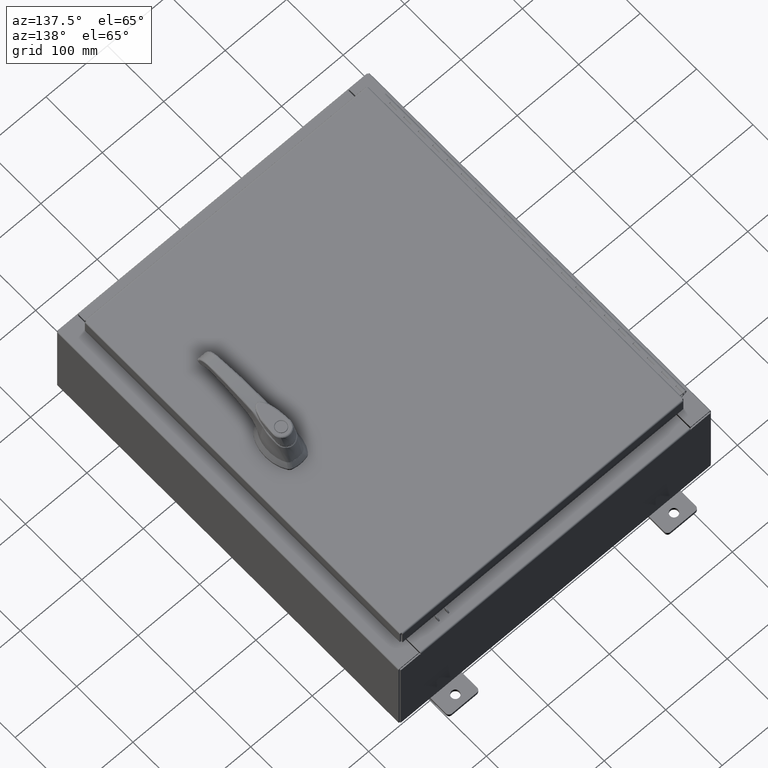
[diagram: clean part render]
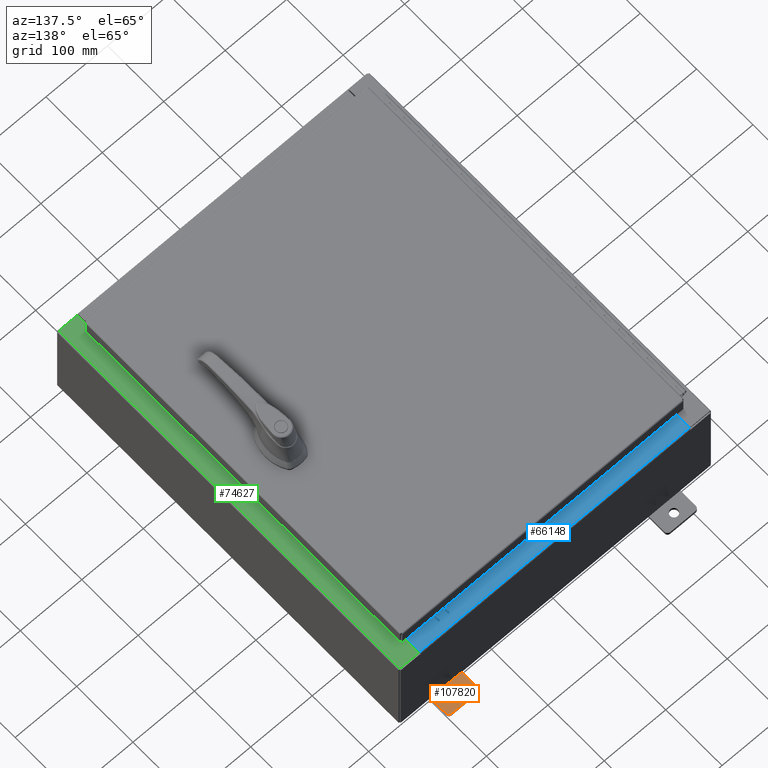
[diagram: same view with three faces highlighted in distinct colors, each labeled with its STEP entity id]
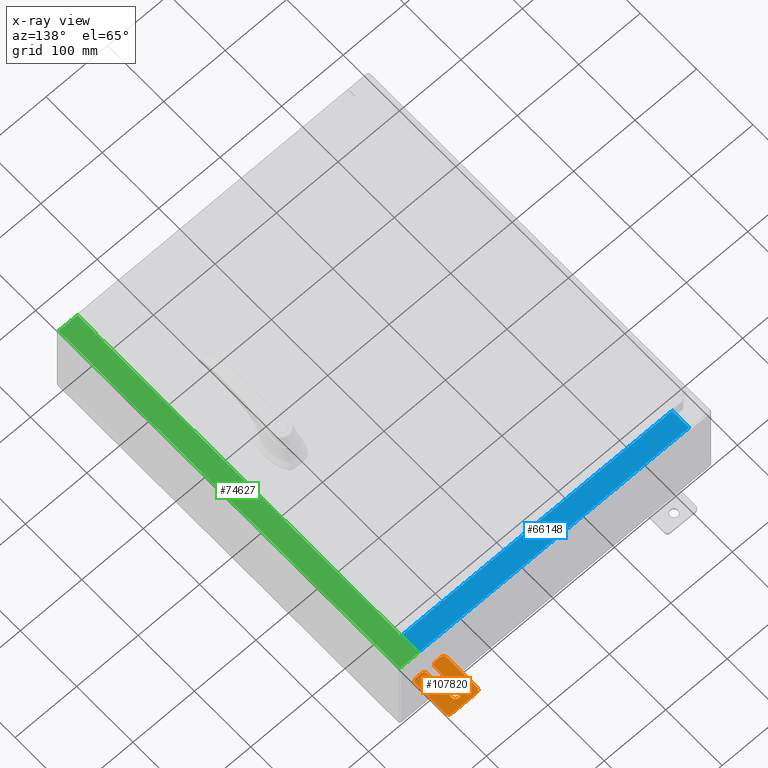
[diagram: x-ray of the same camera — body ghosted, the three highlighted faces saturated]
A machine part, auxiliary view with three faces highlighted in distinct colors.
The next image is the same camera in x-ray (body ghosted, the three faces saturated) — at least one of them is partly hidden behind the body in this view.
Their STEP definitions:

[orange] entity #107820 — the highlighted planar face has unit normal (0, 0, 1).
#383 = AXIS2_PLACEMENT_3D ( 'NONE', #83677, #31133, #92495 ) ;
#1089 = DIRECTION ( 'NONE',  ( 0.0000000000000000000, -1.639108796198553600E-015, -1.000000000000000000 ) ) ;
#3172 = ORIENTED_EDGE ( 'NONE', *, *, #18090, .T. ) ;
#5237 = EDGE_LOOP ( 'NONE', ( #54647, #91751 ) ) ;
#6059 = ORIENTED_EDGE ( 'NONE', *, *, #61087, .T. ) ;
#6910 = VECTOR ( 'NONE', #79364, 39.37007874015748100 ) ;
#7860 = EDGE_CURVE ( 'NONE', #93725, #83762, #107608, .T. ) ;
#9189 = VERTEX_POINT ( 'NONE', #81937 ) ;
#11340 = EDGE_CURVE ( 'NONE', #60793, #107185, #50940, .T. ) ;
#12171 = VECTOR ( 'NONE', #1089, 39.37007874015748100 ) ;
#14058 = DIRECTION ( 'NONE',  ( 1.000000000000000000, 0.0000000000000000000, -0.0000000000000000000 ) ) ;
#14570 = CARTESIAN_POINT ( 'NONE',  ( 0.0000000000000000000, -1.250000000000002400, 0.8099999999999980500 ) ) ;
#15679 = CARTESIAN_POINT ( 'NONE',  ( 0.0000000000000000000, 1.059999999999996500, 0.9999999999999953400 ) ) ;
#17551 = VERTEX_POINT ( 'NONE', #30826 ) ;
#18003 = CARTESIAN_POINT ( 'NONE',  ( 0.0000000000000000000, -1.250000000000005600, -1.000000000000006200 ) ) ;
#18090 = EDGE_CURVE ( 'NONE', #17551, #9189, #48164, .T. ) ;
#19557 = EDGE_CURVE ( 'NONE', #51371, #92406, #23348, .T. ) ;
#22724 = CARTESIAN_POINT ( 'NONE',  ( 0.0000000000000000000, -1.060000000000004100, -0.8100000000000050500 ) ) ;
#23044 = CARTESIAN_POINT ( 'NONE',  ( 0.0000000000000000000, -1.060000000000001200, 0.9999999999999988900 ) ) ;
#23348 = CIRCLE ( 'NONE', #383, 0.2499999999999999200 ) ;
#24447 = CARTESIAN_POINT ( 'NONE',  ( 6.829619984160658000E-017, -1.250000000000003800, 0.2500000000000005000 ) ) ;
#24894 = VECTOR ( 'NONE', #27491, 39.37007874015748100 ) ;
#26479 = CARTESIAN_POINT ( 'NONE',  ( 0.0000000000000000000, 1.059999999999993400, -1.000000000000010000 ) ) ;
#26676 = CARTESIAN_POINT ( 'NONE',  ( 0.0000000000000000000, -1.060000000000003400, -0.4400000000000005000 ) ) ;
#26924 = CARTESIAN_POINT ( 'NONE',  ( 0.0000000000000000000, 1.249999999999994700, -0.8100000000000092700 ) ) ;
#26985 = ORIENTED_EDGE ( 'NONE', *, *, #7860, .T. ) ;
#27127 = ORIENTED_EDGE ( 'NONE', *, *, #108328, .T. ) ;
#27491 = DIRECTION ( 'NONE',  ( 0.0000000000000000000, -1.639108796198553600E-015, -1.000000000000000000 ) ) ;
#28781 = DIRECTION ( 'NONE',  ( -1.000000000000000000, 6.523827964459549700E-016, 5.163192708025532000E-017 ) ) ;
#29000 = ORIENTED_EDGE ( 'NONE', *, *, #64767, .T. ) ;
#29571 = VERTEX_POINT ( 'NONE', #47344 ) ;
#29599 = ORIENTED_EDGE ( 'NONE', *, *, #113372, .T. ) ;
#29658 = EDGE_CURVE ( 'NONE', #57398, #93725, #111039, .T. ) ;
#30458 = CARTESIAN_POINT ( 'NONE',  ( 4.168508244714285900E-016, 0.6249999999999992200, 0.2499999999999999200 ) ) ;
#30826 = CARTESIAN_POINT ( 'NONE',  ( 0.0000000000000000000, -0.6249999999999992200, 0.2500000000000005000 ) ) ;
#30906 = ORIENTED_EDGE ( 'NONE', *, *, #29658, .T. ) ;
#31133 = DIRECTION ( 'NONE',  ( 1.000000000000000000, -0.0000000000000000000, -5.163192708025532000E-017 ) ) ;
#31171 = VECTOR ( 'NONE', #104127, 39.37007874015748100 ) ;
#31558 = DIRECTION ( 'NONE',  ( 0.0000000000000000000, 0.0000000000000000000, -1.000000000000000000 ) ) ;
#31863 = DIRECTION ( 'NONE',  ( 1.000000000000000000, 0.0000000000000000000, -0.0000000000000000000 ) ) ;
#35490 = DIRECTION ( 'NONE',  ( 0.0000000000000000000, 0.0000000000000000000, -1.000000000000000000 ) ) ;
#35914 = CARTESIAN_POINT ( 'NONE',  ( 0.0000000000000000000, -1.250000000000002200, 0.9999999999999992200 ) ) ;
#36983 = CIRCLE ( 'NONE', #38954, 0.2499999999999999200 ) ;
#37105 = ORIENTED_EDGE ( 'NONE', *, *, #59750, .T. ) ;
#38954 = AXIS2_PLACEMENT_3D ( 'NONE', #50074, #111464, #58891 ) ;
#39408 = LINE ( 'NONE', #51550, #31171 ) ;
#39749 = VERTEX_POINT ( 'NONE', #53704 ) ;
#40163 = VECTOR ( 'NONE', #69629, 39.37007874015748100 ) ;
#41824 = CARTESIAN_POINT ( 'NONE',  ( 0.0000000000000000000, -1.250000000000004700, -0.4400000000000002200 ) ) ;
#45274 = VERTEX_POINT ( 'NONE', #26479 ) ;
#45762 = DIRECTION ( 'NONE',  ( 0.0000000000000000000, -1.000000000000000000, 1.639108796198558100E-015 ) ) ;
#47344 = CARTESIAN_POINT ( 'NONE',  ( 0.0000000000000000000, -1.250000000000005300, -0.8100000000000047200 ) ) ;
#47496 = CARTESIAN_POINT ( 'NONE',  ( 0.0000000000000000000, 1.059999999999993600, -0.8100000000000089400 ) ) ;
#47587 = DIRECTION ( 'NONE',  ( 1.000000000000000000, 0.0000000000000000000, -0.0000000000000000000 ) ) ;
#48144 = VECTOR ( 'NONE', #45762, 39.37007874015748100 ) ;
#48164 = CIRCLE ( 'NONE', #79580, 0.2499999999999999200 ) ;
#49460 = AXIS2_PLACEMENT_3D ( 'NONE', #22724, #84094, #31558 ) ;
#50074 = CARTESIAN_POINT ( 'NONE',  ( 4.039428427013647300E-016, 0.6249999999999992200, -9.783840404509077400E-018 ) ) ;
#50928 = DIRECTION ( 'NONE',  ( -0.0000000000000000000, 0.0000000000000000000, -1.000000000000000000 ) ) ;
#50940 = LINE ( 'NONE', #71883, #48144 ) ;
#51371 = VERTEX_POINT ( 'NONE', #70591 ) ;
#51550 = CARTESIAN_POINT ( 'NONE',  ( 0.0000000000000000000, 1.249999999999994200, -1.000000000000010400 ) ) ;
#53580 = AXIS2_PLACEMENT_3D ( 'NONE', #47496, #108918, #56345 ) ;
#53704 = CARTESIAN_POINT ( 'NONE',  ( 0.0000000000000000000, 1.249999999999997300, 0.8099999999999935000 ) ) ;
#53920 = CARTESIAN_POINT ( 'NONE',  ( 0.0000000000000000000, -1.250000000000003100, 0.4400000000000020000 ) ) ;
#54647 = ORIENTED_EDGE ( 'NONE', *, *, #19557, .F. ) ;
#56020 = AXIS2_PLACEMENT_3D ( 'NONE', #84410, #31863, #93218 ) ;
#56022 = VECTOR ( 'NONE', #85838, 39.37007874015748100 ) ;
#56345 = DIRECTION ( 'NONE',  ( 0.0000000000000000000, 0.0000000000000000000, -1.000000000000000000 ) ) ;
#57398 = VERTEX_POINT ( 'NONE', #14570 ) ;
#57749 = AXIS2_PLACEMENT_3D ( 'NONE', #100163, #47587, #109005 ) ;
#58240 = EDGE_CURVE ( 'NONE', #39749, #60793, #80124, .T. ) ;
#58891 = DIRECTION ( 'NONE',  ( -5.163192708025533800E-017, 0.0000000000000000000, -1.000000000000000000 ) ) ;
#59132 = AXIS2_PLACEMENT_3D ( 'NONE', #26676, #88052, #35490 ) ;
#59425 = EDGE_CURVE ( 'NONE', #9189, #103077, #95113, .T. ) ;
#59750 = EDGE_CURVE ( 'NONE', #29571, #76800, #70372, .T. ) ;
#60755 = ORIENTED_EDGE ( 'NONE', *, *, #70811, .T. ) ;
#60766 = CARTESIAN_POINT ( 'NONE',  ( 4.780733988912460100E-016, -0.6249999999999993300, -0.2499999999999993900 ) ) ;
#60793 = VERTEX_POINT ( 'NONE', #15679 ) ;
#61087 = EDGE_CURVE ( 'NONE', #66047, #29571, #100373, .T. ) ;
#64767 = EDGE_CURVE ( 'NONE', #83762, #17551, #102716, .T. ) ;
#65023 = ORIENTED_EDGE ( 'NONE', *, *, #59425, .T. ) ;
#66047 = VERTEX_POINT ( 'NONE', #41824 ) ;
#66602 = CARTESIAN_POINT ( 'NONE',  ( 0.0000000000000000000, -1.060000000000001600, 0.8099999999999978300 ) ) ;
#69629 = DIRECTION ( 'NONE',  ( -6.556435184794182400E-016, -1.000000000000000000, -1.639108796198545600E-016 ) ) ;
#69905 = AXIS2_PLACEMENT_3D ( 'NONE', #85853, #103504, #50928 ) ;
#70267 = CIRCLE ( 'NONE', #96927, 0.1900000000000011100 ) ;
#70372 = CIRCLE ( 'NONE', #49460, 0.1900000000000011100 ) ;
#70512 = ORIENTED_EDGE ( 'NONE', *, *, #58240, .T. ) ;
#70591 = CARTESIAN_POINT ( 'NONE',  ( 3.910348609313009100E-016, 0.6249999999999992200, -0.2499999999999999200 ) ) ;
#70811 = EDGE_CURVE ( 'NONE', #76800, #45274, #71354, .T. ) ;
#71122 = CARTESIAN_POINT ( 'NONE',  ( 0.0000000000000000000, -1.060000000000004500, -1.000000000000006400 ) ) ;
#71228 = CARTESIAN_POINT ( 'NONE',  ( 0.0000000000000000000, -1.250000000000002200, 0.9999999999999992200 ) ) ;
#71354 = LINE ( 'NONE', #18003, #6910 ) ;
#71883 = CARTESIAN_POINT ( 'NONE',  ( 0.0000000000000000000, 1.249999999999997600, 0.9999999999999951200 ) ) ;
#73930 = ORIENTED_EDGE ( 'NONE', *, *, #104992, .T. ) ;
#75391 = DIRECTION ( 'NONE',  ( 0.0000000000000000000, 0.0000000000000000000, -1.000000000000000000 ) ) ;
#76800 = VERTEX_POINT ( 'NONE', #71122 ) ;
#78039 = ORIENTED_EDGE ( 'NONE', *, *, #89802, .T. ) ;
#79364 = DIRECTION ( 'NONE',  ( 0.0000000000000000000, 1.000000000000000000, -1.639108796198558100E-015 ) ) ;
#79580 = AXIS2_PLACEMENT_3D ( 'NONE', #81352, #28781, #90163 ) ;
#80124 = CIRCLE ( 'NONE', #56020, 0.1900000000000011100 ) ;
#80766 = CIRCLE ( 'NONE', #53580, 0.1900000000000011100 ) ;
#80778 = VERTEX_POINT ( 'NONE', #26924 ) ;
#81352 = CARTESIAN_POINT ( 'NONE',  ( 4.780733988912460100E-016, -0.6249999999999993300, 5.858939755051854500E-017 ) ) ;
#81937 = CARTESIAN_POINT ( 'NONE',  ( 4.780733988912460100E-016, -0.6249999999999993300, -0.2499999999999998600 ) ) ;
#82017 = FACE_OUTER_BOUND ( 'NONE', #85247, .T. ) ;
#83677 = CARTESIAN_POINT ( 'NONE',  ( 4.039428427013647300E-016, 0.6249999999999992200, -9.783840404509077400E-018 ) ) ;
#83762 = VERTEX_POINT ( 'NONE', #111320 ) ;
#84094 = DIRECTION ( 'NONE',  ( 1.000000000000000000, 0.0000000000000000000, -0.0000000000000000000 ) ) ;
#84410 = CARTESIAN_POINT ( 'NONE',  ( 0.0000000000000000000, 1.059999999999996300, 0.8099999999999938400 ) ) ;
#85247 = EDGE_LOOP ( 'NONE', ( #98000, #78039, #30906, #26985, #29000, #3172, #65023, #29599, #6059, #37105, #60755, #73930, #27127, #70512 ) ) ;
#85838 = DIRECTION ( 'NONE',  ( 6.556435184794182400E-016, 1.000000000000000000, 0.0000000000000000000 ) ) ;
#85853 = CARTESIAN_POINT ( 'NONE',  ( 0.0000000000000000000, 0.0000000000000000000, 0.0000000000000000000 ) ) ;
#88052 = DIRECTION ( 'NONE',  ( 1.000000000000000000, 0.0000000000000000000, -0.0000000000000000000 ) ) ;
#89802 = EDGE_CURVE ( 'NONE', #107185, #57398, #70267, .T. ) ;
#90163 = DIRECTION ( 'NONE',  ( -6.523827964459551700E-016, -1.000000000000000000, 0.0000000000000000000 ) ) ;
#91751 = ORIENTED_EDGE ( 'NONE', *, *, #91998, .F. ) ;
#91998 = EDGE_CURVE ( 'NONE', #92406, #51371, #36983, .T. ) ;
#92406 = VERTEX_POINT ( 'NONE', #30458 ) ;
#92495 = DIRECTION ( 'NONE',  ( -5.163192708025533800E-017, 0.0000000000000000000, -1.000000000000000000 ) ) ;
#93218 = DIRECTION ( 'NONE',  ( 0.0000000000000000000, 0.0000000000000000000, -1.000000000000000000 ) ) ;
#93725 = VERTEX_POINT ( 'NONE', #53920 ) ;
#95113 = LINE ( 'NONE', #60766, #40163 ) ;
#96927 = AXIS2_PLACEMENT_3D ( 'NONE', #66602, #14058, #75391 ) ;
#98000 = ORIENTED_EDGE ( 'NONE', *, *, #11340, .T. ) ;
#100163 = CARTESIAN_POINT ( 'NONE',  ( 0.0000000000000000000, -1.060000000000002100, 0.4400000000000016700 ) ) ;
#100373 = LINE ( 'NONE', #71228, #24894 ) ;
#101951 = CIRCLE ( 'NONE', #59132, 0.1900000000000011100 ) ;
#102716 = LINE ( 'NONE', #24447, #56022 ) ;
#103077 = VERTEX_POINT ( 'NONE', #106908 ) ;
#103118 = PLANE ( 'NONE',  #69905 ) ;
#103504 = DIRECTION ( 'NONE',  ( 1.000000000000000000, 0.0000000000000000000, -0.0000000000000000000 ) ) ;
#104127 = DIRECTION ( 'NONE',  ( 0.0000000000000000000, 1.639108796198553600E-015, 1.000000000000000000 ) ) ;
#104992 = EDGE_CURVE ( 'NONE', #45274, #80778, #80766, .T. ) ;
#106908 = CARTESIAN_POINT ( 'NONE',  ( 1.928684683526964400E-016, -1.060000000000003400, -0.2499999999999994400 ) ) ;
#107185 = VERTEX_POINT ( 'NONE', #23044 ) ;
#107608 = CIRCLE ( 'NONE', #57749, 0.1900000000000011400 ) ;
#107820 = ADVANCED_FACE ( 'NONE', ( #108101, #82017 ), #103118, .T. ) ;
#108101 = FACE_BOUND ( 'NONE', #5237, .T. ) ;
#108328 = EDGE_CURVE ( 'NONE', #80778, #39749, #39408, .T. ) ;
#108918 = DIRECTION ( 'NONE',  ( 1.000000000000000000, 0.0000000000000000000, -0.0000000000000000000 ) ) ;
#109005 = DIRECTION ( 'NONE',  ( 0.0000000000000000000, 0.0000000000000000000, -1.000000000000000000 ) ) ;
#111039 = LINE ( 'NONE', #35914, #12171 ) ;
#111320 = CARTESIAN_POINT ( 'NONE',  ( 1.928684683526972300E-016, -1.060000000000002100, 0.2500000000000005000 ) ) ;
#111464 = DIRECTION ( 'NONE',  ( 1.000000000000000000, -0.0000000000000000000, -5.163192708025532000E-017 ) ) ;
#113372 = EDGE_CURVE ( 'NONE', #103077, #66047, #101951, .T. ) ;

[blue] entity #66148 — the highlighted planar face has unit normal (0, 0, 1).
#200 = VECTOR ( 'NONE', #31234, 39.37007874015748100 ) ;
#4813 = CARTESIAN_POINT ( 'NONE',  ( 8.637200000000000000, -1.287299999999999900, 3.000000000000005300 ) ) ;
#4862 = EDGE_CURVE ( 'NONE', #84535, #19453, #51688, .T. ) ;
#7817 = VECTOR ( 'NONE', #67181, 39.37007874015748100 ) ;
#7885 = FACE_OUTER_BOUND ( 'NONE', #77574, .T. ) ;
#8498 = CARTESIAN_POINT ( 'NONE',  ( -2.773851121247453900E-018, -0.08770000000000000000, 3.000000000000001300 ) ) ;
#13171 = EDGE_CURVE ( 'NONE', #67221, #84535, #72825, .T. ) ;
#18951 = ORIENTED_EDGE ( 'NONE', *, *, #24458, .F. ) ;
#19453 = VERTEX_POINT ( 'NONE', #100550 ) ;
#20174 = LINE ( 'NONE', #25999, #37999 ) ;
#24458 = EDGE_CURVE ( 'NONE', #93027, #67221, #20174, .T. ) ;
#25701 = CARTESIAN_POINT ( 'NONE',  ( 0.0000000000000000000, 1.069354855923099900E-014, 3.000000000000000900 ) ) ;
#25999 = CARTESIAN_POINT ( 'NONE',  ( 8.637200000000000000, -1.300299999999999800, 3.000000000000005300 ) ) ;
#31234 = DIRECTION ( 'NONE',  ( -1.000000000000000000, 0.0000000000000000000, 0.0000000000000000000 ) ) ;
#34816 = DIRECTION ( 'NONE',  ( -0.0000000000000000000, -1.000000000000000000, 3.566381192773190000E-015 ) ) ;
#37999 = VECTOR ( 'NONE', #34816, 39.37007874015748100 ) ;
#38423 = VECTOR ( 'NONE', #78658, 39.37007874015748100 ) ;
#40775 = EDGE_CURVE ( 'NONE', #93027, #19453, #108436, .T. ) ;
#43295 = DIRECTION ( 'NONE',  ( 0.0000000000000000000, 3.566381192773190000E-015, 1.000000000000000000 ) ) ;
#45635 = ORIENTED_EDGE ( 'NONE', *, *, #13171, .F. ) ;
#49492 = CARTESIAN_POINT ( 'NONE',  ( -8.637200000000000000, -0.07469999999999973900, 3.000000000000000900 ) ) ;
#51688 = LINE ( 'NONE', #49492, #7817 ) ;
#51770 = PLANE ( 'NONE',  #77690 ) ;
#66148 = ADVANCED_FACE ( 'NONE', ( #7885 ), #51770, .T. ) ;
#67181 = DIRECTION ( 'NONE',  ( -0.0000000000000000000, 1.000000000000000000, -3.566381192773190000E-015 ) ) ;
#67221 = VERTEX_POINT ( 'NONE', #104929 ) ;
#70473 = CARTESIAN_POINT ( 'NONE',  ( -8.637200000000000000, -1.287299999999999200, 3.000000000000005300 ) ) ;
#72825 = LINE ( 'NONE', #4813, #200 ) ;
#74450 = ORIENTED_EDGE ( 'NONE', *, *, #40775, .T. ) ;
#77574 = EDGE_LOOP ( 'NONE', ( #79850, #45635, #18951, #74450 ) ) ;
#77690 = AXIS2_PLACEMENT_3D ( 'NONE', #25701, #43295, #104719 ) ;
#78658 = DIRECTION ( 'NONE',  ( -1.000000000000000000, 3.162886113166609200E-017, -1.128005754888089100E-031 ) ) ;
#79850 = ORIENTED_EDGE ( 'NONE', *, *, #4862, .F. ) ;
#84535 = VERTEX_POINT ( 'NONE', #70473 ) ;
#85912 = CARTESIAN_POINT ( 'NONE',  ( 8.637200000000000000, -0.08769999999999965300, 3.000000000000000900 ) ) ;
#93027 = VERTEX_POINT ( 'NONE', #85912 ) ;
#100550 = CARTESIAN_POINT ( 'NONE',  ( -8.637200000000000000, -0.08770000000000000000, 3.000000000000000900 ) ) ;
#104719 = DIRECTION ( 'NONE',  ( 0.0000000000000000000, -1.000000000000000000, 3.566381192773190000E-015 ) ) ;
#104929 = CARTESIAN_POINT ( 'NONE',  ( 8.637200000000000000, -1.287299999999999900, 3.000000000000005300 ) ) ;
#108436 = LINE ( 'NONE', #8498, #38423 ) ;

[green] entity #74627 — the highlighted planar face has unit normal (-0, 0, -1).
#379 = EDGE_CURVE ( 'NONE', #105961, #31167, #67447, .T. ) ;
#983 = AXIS2_PLACEMENT_3D ( 'NONE', #81159, #98790, #46213 ) ;
#4903 = DIRECTION ( 'NONE',  ( -1.000000000000000000, 0.0000000000000000000, 7.132762385546378400E-015 ) ) ;
#7962 = CARTESIAN_POINT ( 'NONE',  ( 8.750050000000021200, -10.59374999999999800, 5.925300000000009800 ) ) ;
#8721 = CARTESIAN_POINT ( 'NONE',  ( 8.699700000000019500, 11.92529999999999600, 5.925300000000009800 ) ) ;
#8794 = CIRCLE ( 'NONE', #23632, 0.01867499999999949400 ) ;
#9372 = ORIENTED_EDGE ( 'NONE', *, *, #35537, .F. ) ;
#9706 = LINE ( 'NONE', #28517, #53595 ) ;
#10490 = FACE_OUTER_BOUND ( 'NONE', #74728, .T. ) ;
#10640 = VECTOR ( 'NONE', #76055, 39.37007874015748100 ) ;
#11167 = VERTEX_POINT ( 'NONE', #72696 ) ;
#12737 = CARTESIAN_POINT ( 'NONE',  ( 8.750050000000021200, -10.61242499999999800, 5.925300000000011600 ) ) ;
#13214 = VERTEX_POINT ( 'NONE', #75678 ) ;
#13906 = VECTOR ( 'NONE', #53774, 39.37007874015748100 ) ;
#14462 = DIRECTION ( 'NONE',  ( 1.000000000000000000, 0.0000000000000000000, -7.132762385546378400E-015 ) ) ;
#16654 = LINE ( 'NONE', #106351, #13906 ) ;
#16767 = ORIENTED_EDGE ( 'NONE', *, *, #76685, .F. ) ;
#19791 = PLANE ( 'NONE',  #983 ) ;
#20068 = CIRCLE ( 'NONE', #53824, 0.01867499999999949400 ) ;
#21546 = DIRECTION ( 'NONE',  ( 1.000000000000000000, 0.0000000000000000000, 0.0000000000000000000 ) ) ;
#23056 = LINE ( 'NONE', #72306, #82045 ) ;
#23169 = CARTESIAN_POINT ( 'NONE',  ( 8.699700000000019500, -10.63109999999999600, 5.925300000000009800 ) ) ;
#23632 = AXIS2_PLACEMENT_3D ( 'NONE', #44925, #106364, #53791 ) ;
#24222 = CARTESIAN_POINT ( 'NONE',  ( 8.712700000000021200, 10.59374999999999600, 5.925300000000011600 ) ) ;
#26383 = DIRECTION ( 'NONE',  ( -1.000000000000000000, 0.0000000000000000000, 0.0000000000000000000 ) ) ;
#26521 = VECTOR ( 'NONE', #49223, 39.37007874015748100 ) ;
#27818 = LINE ( 'NONE', #57238, #112943 ) ;
#28110 = LINE ( 'NONE', #40883, #51448 ) ;
#28517 = CARTESIAN_POINT ( 'NONE',  ( 8.699700000000019500, 0.0000000000000000000, 5.925300000000009800 ) ) ;
#30038 = LINE ( 'NONE', #66202, #100019 ) ;
#31167 = VERTEX_POINT ( 'NONE', #110045 ) ;
#32461 = DIRECTION ( 'NONE',  ( 1.000000000000000000, 0.0000000000000000000, 0.0000000000000000000 ) ) ;
#33394 = ORIENTED_EDGE ( 'NONE', *, *, #36382, .F. ) ;
#33846 = VERTEX_POINT ( 'NONE', #55021 ) ;
#35537 = EDGE_CURVE ( 'NONE', #72972, #90613, #66351, .T. ) ;
#36382 = EDGE_CURVE ( 'NONE', #33846, #66328, #27818, .T. ) ;
#36731 = LINE ( 'NONE', #49977, #10640 ) ;
#37429 = VERTEX_POINT ( 'NONE', #8721 ) ;
#40169 = EDGE_CURVE ( 'NONE', #37429, #66328, #9706, .T. ) ;
#40883 = CARTESIAN_POINT ( 'NONE',  ( 8.712700000000021200, 10.59374999999999600, 5.925300000000011600 ) ) ;
#42984 = VECTOR ( 'NONE', #26383, 39.37007874015748100 ) ;
#44925 = CARTESIAN_POINT ( 'NONE',  ( 8.750050000000021200, 10.61242499999999500, 5.925300000000011600 ) ) ;
#45140 = VERTEX_POINT ( 'NONE', #24222 ) ;
#46213 = DIRECTION ( 'NONE',  ( -1.000000000000000000, 0.0000000000000000000, 7.132762385546378400E-015 ) ) ;
#47085 = VERTEX_POINT ( 'NONE', #51935 ) ;
#48803 = EDGE_CURVE ( 'NONE', #13214, #11167, #93777, .T. ) ;
#49223 = DIRECTION ( 'NONE',  ( 1.000000000000000000, 0.0000000000000000000, 2.170286390199955400E-014 ) ) ;
#49977 = CARTESIAN_POINT ( 'NONE',  ( 8.699700000000019500, 0.0000000000000000000, 5.925300000000009800 ) ) ;
#51448 = VECTOR ( 'NONE', #32461, 39.37007874015748100 ) ;
#51524 = ORIENTED_EDGE ( 'NONE', *, *, #48803, .F. ) ;
#51935 = CARTESIAN_POINT ( 'NONE',  ( 9.912300000000019700, 11.92529999999999800, 5.925300000000001800 ) ) ;
#52025 = ORIENTED_EDGE ( 'NONE', *, *, #56527, .F. ) ;
#53595 = VECTOR ( 'NONE', #89882, 39.37007874015748100 ) ;
#53774 = DIRECTION ( 'NONE',  ( -0.0000000000000000000, -1.000000000000000000, -0.0000000000000000000 ) ) ;
#53791 = DIRECTION ( 'NONE',  ( 1.000000000000000000, 0.0000000000000000000, 0.0000000000000000000 ) ) ;
#53824 = AXIS2_PLACEMENT_3D ( 'NONE', #12737, #74064, #21546 ) ;
#55021 = CARTESIAN_POINT ( 'NONE',  ( 8.750050000000021200, 10.63109999999999500, 5.925300000000009800 ) ) ;
#55074 = ORIENTED_EDGE ( 'NONE', *, *, #379, .T. ) ;
#56344 = ORIENTED_EDGE ( 'NONE', *, *, #73292, .F. ) ;
#56527 = EDGE_CURVE ( 'NONE', #94269, #33846, #8794, .T. ) ;
#57238 = CARTESIAN_POINT ( 'NONE',  ( 8.750050000000021200, 10.63109999999999500, 5.925300000000011600 ) ) ;
#59075 = ORIENTED_EDGE ( 'NONE', *, *, #74872, .F. ) ;
#59318 = CARTESIAN_POINT ( 'NONE',  ( 8.712700000000021200, -10.59374999999999800, 5.925300000000011600 ) ) ;
#65660 = CARTESIAN_POINT ( 'NONE',  ( 8.699700000000019500, -11.92530000000000000, 5.925300000000009800 ) ) ;
#66040 = DIRECTION ( 'NONE',  ( -1.000000000000000000, 4.340572780399910900E-014, -2.170286390199955400E-014 ) ) ;
#66202 = CARTESIAN_POINT ( 'NONE',  ( 4.252457061909005100E-014, 11.92529999999999800, 5.925300000000072800 ) ) ;
#66328 = VERTEX_POINT ( 'NONE', #108490 ) ;
#66351 = LINE ( 'NONE', #87762, #42984 ) ;
#67447 = LINE ( 'NONE', #103820, #111360 ) ;
#72306 = CARTESIAN_POINT ( 'NONE',  ( 8.712700000000021200, -10.59375000000000000, 5.925300000000011600 ) ) ;
#72696 = CARTESIAN_POINT ( 'NONE',  ( 8.750050000000021200, -10.63109999999999600, 5.925300000000009800 ) ) ;
#72972 = VERTEX_POINT ( 'NONE', #7962 ) ;
#73292 = EDGE_CURVE ( 'NONE', #90613, #45140, #23056, .T. ) ;
#73548 = ORIENTED_EDGE ( 'NONE', *, *, #104559, .T. ) ;
#74064 = DIRECTION ( 'NONE',  ( 7.132762385546378400E-015, 0.0000000000000000000, 1.000000000000000000 ) ) ;
#74627 = ADVANCED_FACE ( 'NONE', ( #10490 ), #19791, .F. ) ;
#74728 = EDGE_LOOP ( 'NONE', ( #51524, #80448, #55074, #83160, #73548, #85893, #33394, #52025, #16767, #56344, #9372, #59075 ) ) ;
#74872 = EDGE_CURVE ( 'NONE', #11167, #72972, #20068, .T. ) ;
#75678 = CARTESIAN_POINT ( 'NONE',  ( 8.699700000000019500, -10.63109999999999600, 5.925300000000009800 ) ) ;
#76055 = DIRECTION ( 'NONE',  ( 0.0000000000000000000, -1.000000000000000000, 0.0000000000000000000 ) ) ;
#76685 = EDGE_CURVE ( 'NONE', #45140, #94269, #28110, .T. ) ;
#80448 = ORIENTED_EDGE ( 'NONE', *, *, #80715, .T. ) ;
#80715 = EDGE_CURVE ( 'NONE', #13214, #105961, #36731, .T. ) ;
#81159 = CARTESIAN_POINT ( 'NONE',  ( 4.252457061909005100E-014, 0.0000000000000000000, 5.925300000000072800 ) ) ;
#82045 = VECTOR ( 'NONE', #107988, 39.37007874015748100 ) ;
#83160 = ORIENTED_EDGE ( 'NONE', *, *, #90266, .F. ) ;
#85893 = ORIENTED_EDGE ( 'NONE', *, *, #40169, .T. ) ;
#87762 = CARTESIAN_POINT ( 'NONE',  ( 8.750050000000021200, -10.59374999999999800, 5.925300000000011600 ) ) ;
#88938 = CARTESIAN_POINT ( 'NONE',  ( 8.750050000000021200, 10.59374999999999600, 5.925300000000009800 ) ) ;
#89882 = DIRECTION ( 'NONE',  ( 0.0000000000000000000, -1.000000000000000000, 0.0000000000000000000 ) ) ;
#90266 = EDGE_CURVE ( 'NONE', #47085, #31167, #16654, .T. ) ;
#90613 = VERTEX_POINT ( 'NONE', #59318 ) ;
#93777 = LINE ( 'NONE', #23169, #26521 ) ;
#94269 = VERTEX_POINT ( 'NONE', #88938 ) ;
#98790 = DIRECTION ( 'NONE',  ( -7.132762385546378400E-015, 0.0000000000000000000, -1.000000000000000000 ) ) ;
#100019 = VECTOR ( 'NONE', #4903, 39.37007874015748100 ) ;
#103820 = CARTESIAN_POINT ( 'NONE',  ( 4.252457061909005100E-014, -11.92530000000000000, 5.925300000000072800 ) ) ;
#104559 = EDGE_CURVE ( 'NONE', #47085, #37429, #30038, .T. ) ;
#105961 = VERTEX_POINT ( 'NONE', #65660 ) ;
#106351 = CARTESIAN_POINT ( 'NONE',  ( 9.912300000000019700, -11.92530000000000000, 5.925300000000001800 ) ) ;
#106364 = DIRECTION ( 'NONE',  ( 7.132762385546378400E-015, 0.0000000000000000000, 1.000000000000000000 ) ) ;
#107988 = DIRECTION ( 'NONE',  ( -0.0000000000000000000, 1.000000000000000000, -0.0000000000000000000 ) ) ;
#108490 = CARTESIAN_POINT ( 'NONE',  ( 8.699700000000019500, 10.63109999999999600, 5.925300000000009800 ) ) ;
#110045 = CARTESIAN_POINT ( 'NONE',  ( 9.912300000000019700, -11.92530000000000000, 5.925300000000001800 ) ) ;
#111360 = VECTOR ( 'NONE', #14462, 39.37007874015748100 ) ;
#112943 = VECTOR ( 'NONE', #66040, 39.37007874015748100 ) ;